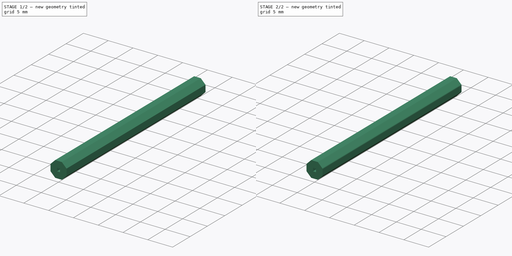
[diagram: build sequence overview — one tinted view per stage of 2, left to right]
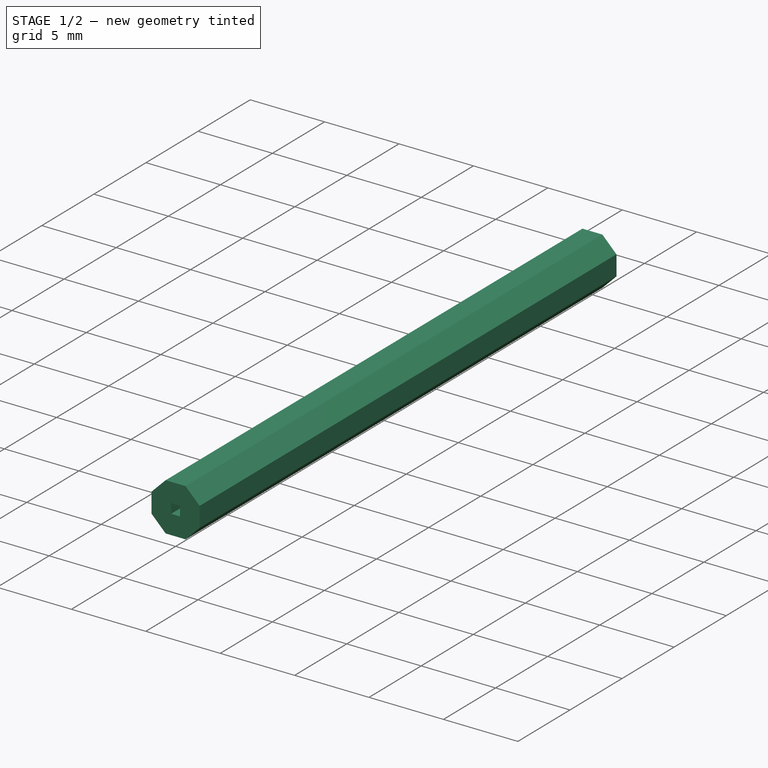
[diagram: stage 1 of 2 — iso view after this stage's code; geometry added in this stage tinted green]
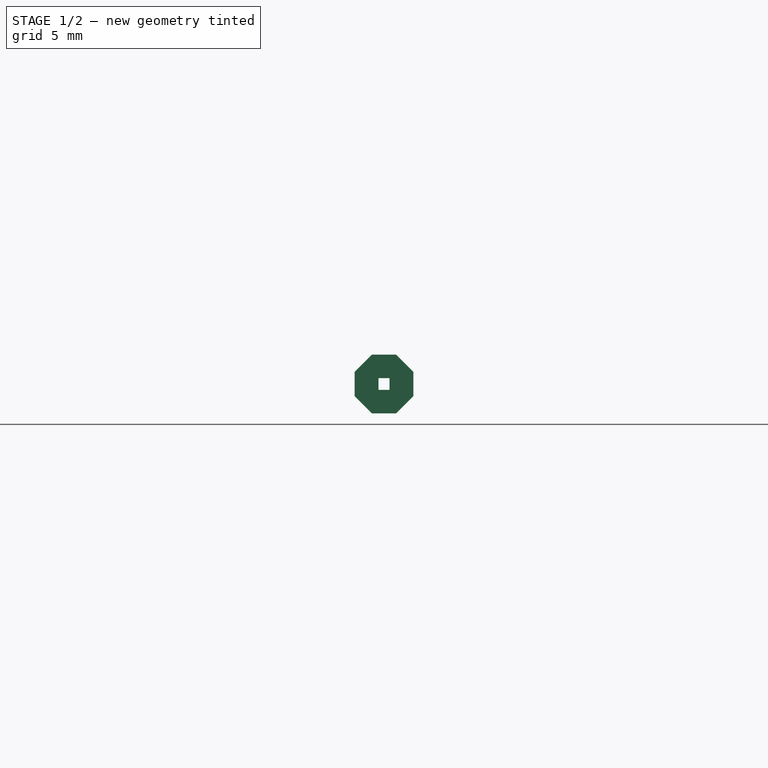
[diagram: stage 1 of 2 — front view after this stage's code; geometry added in this stage tinted green]
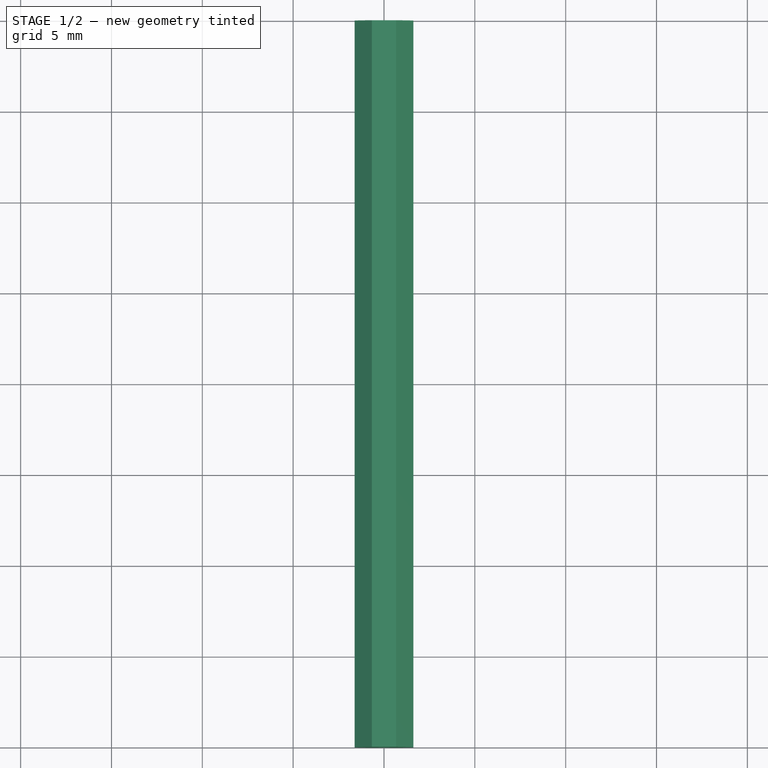
[diagram: stage 1 of 2 — top view after this stage's code; geometry added in this stage tinted green]
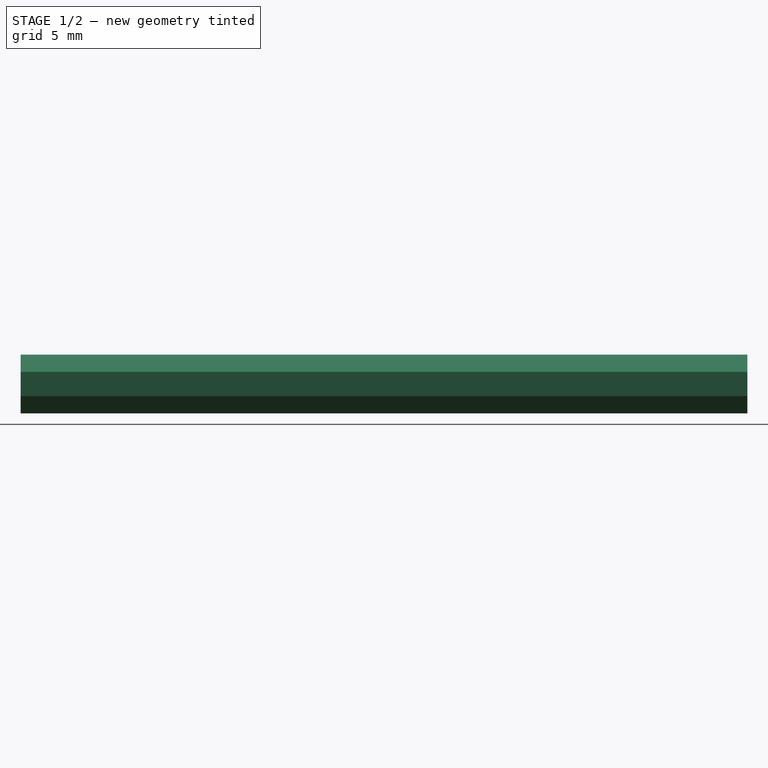
[diagram: stage 1 of 2 — right view after this stage's code; geometry added in this stage tinted green]
FCSTD DOCUMENT  (FreeCAD 1.1R41365 (Git))
Label: FlexureStiffener
License: All rights reserved
LicenseURL: https://en.wikipedia.org/wiki/All_rights_reserved
objects: App::Point×1, Sketcher::SketchObject×1, PartDesign::Pad×1, PartDesign::Fillet×1, PartDesign::Body×1
note: 9 computed .brp shape members not serialized (recipe doc carries the construction recipe); baked Part::Feature solids carry a one-line shape summary decoded from their .brp

FEATURE [App::Point] Origin001
  Role = Origin
FEATURE [Sketcher::SketchObject] Sketch
  ArcFitTolerance = 1e-06
  AttachmentSupport = -> [XZ_Plane]
  ExternalTypes = [0]
  FullyConstrained = true
  MakeInternals = false
  MapMode = 5
  Placement = pos=(0,0,0) rot=(1,0,0;1.5708rad)
  sketch-geometry (14):
    g0: LineSegment StartX=0.669696 StartY=1.61679 StartZ=0 EndX=-0.669696 EndY=1.61679 EndZ=0
    g1: LineSegment StartX=-0.669696 StartY=1.61679 StartZ=0 EndX=-1.61679 EndY=0.669696 EndZ=0
    g2: LineSegment StartX=-1.61679 StartY=0.669696 StartZ=0 EndX=-1.61679 EndY=-0.669696 EndZ=0
    g3: LineSegment StartX=-1.61679 StartY=-0.669696 StartZ=0 EndX=-0.669696 EndY=-1.61679 EndZ=0
    g4: LineSegment StartX=-0.669696 StartY=-1.61679 StartZ=0 EndX=0.669696 EndY=-1.61679 EndZ=0
    g5: LineSegment StartX=0.669696 StartY=-1.61679 StartZ=0 EndX=1.61679 EndY=-0.669696 EndZ=0
    g6: LineSegment StartX=1.61679 StartY=-0.669696 StartZ=0 EndX=1.61679 EndY=0.669696 EndZ=0
    g7: LineSegment StartX=1.61679 StartY=0.669696 StartZ=0 EndX=0.669696 EndY=1.61679 EndZ=0
    g8: Circle [constr] CenterX=0 CenterY=0 CenterZ=0 NormalX=0 NormalY=0 NormalZ=1 AngleXU=0 Radius=1.75
    g9: LineSegment StartX=-0.3 StartY=-0.325 StartZ=0 EndX=0.3 EndY=-0.325 EndZ=0
    g10: LineSegment StartX=0.3 StartY=-0.325 StartZ=0 EndX=0.3 EndY=0.325 EndZ=0
    g11: LineSegment StartX=0.3 StartY=0.325 StartZ=0 EndX=-0.3 EndY=0.325 EndZ=0
    g12: LineSegment StartX=-0.3 StartY=0.325 StartZ=0 EndX=-0.3 EndY=-0.325 EndZ=0
    g13: GeomPoint [constr] X=0 Y=0 Z=0
  constraints (32):
    c: Coincident(g0,g1)
    c: Coincident(g1,g2)
    c: Coincident(g2,g3)
    c: Coincident(g3,g4)
    c: Coincident(g4,g5)
    c: Coincident(g5,g6)
    c: Coincident(g6,g7)
    c: Coincident(g7,g0)
    c: Equal(g0, g1-g7) x7
    c: PointOnObject(g0,g8)
    c: PointOnObject(g1,g8)
    c: PointOnObject(g2,g8)
    c: PointOnObject(g3,g8)
    c: PointOnObject(g4,g8)
    c: PointOnObject(g5,g8)
    c: PointOnObject(g6,g8)
    c: PointOnObject(g7,g8)
    c: Coincident(g8,g-1)
    c: Vertical(g6)
    c: Diameter(g8) = 3.5
    c: Coincident(g9,g10)
    c: Coincident(g10,g11)
    c: Coincident(g11,g12)
    c: Coincident(g12,g9)
    c: Horizontal(g9)
    c: Horizontal(g11)
    c: Vertical(g10)
    c: Vertical(g12)
    c: Symmetric(g11,g9,g13)
    c: Coincident(g13,g8)
    c: DistanceY(g10,g10) = 0.65
    c: DistanceX(g11,g11) = 0.6
FEATURE [PartDesign::Pad] Pad
  Direction = (0,-1,2e-16)
  Length = 40
  Length2 = 10
  Midplane = true
  Placement = pos=(0,0,0) rot=(1,0,0;1.5708rad)
  Profile = -> Sketch
  ReferenceAxis = -> Sketch [N_Axis]
  Refine = true
  Suppressed = false
  Type = 0
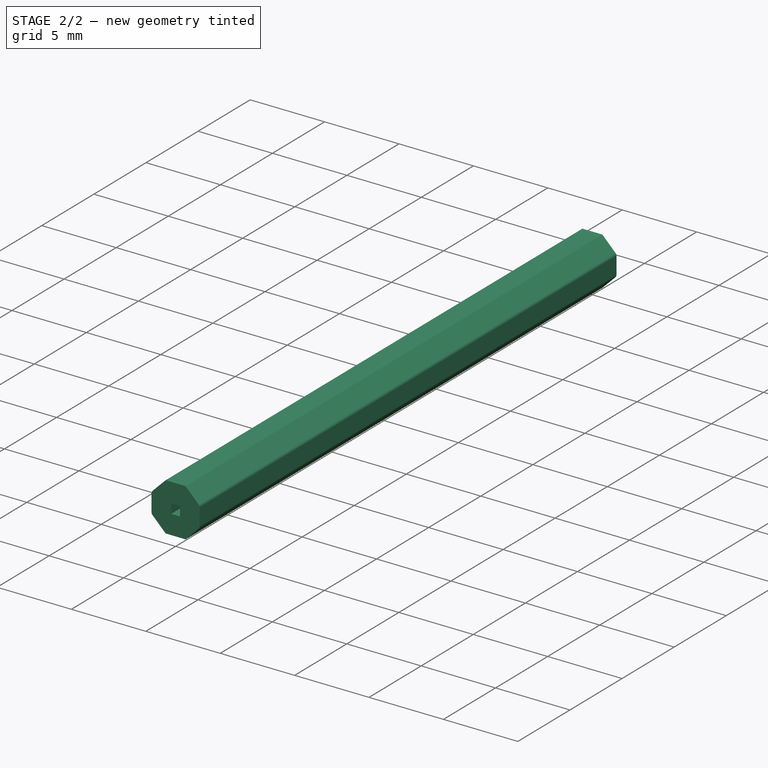
[diagram: stage 2 of 2 — iso view after this stage's code; geometry added in this stage tinted green]
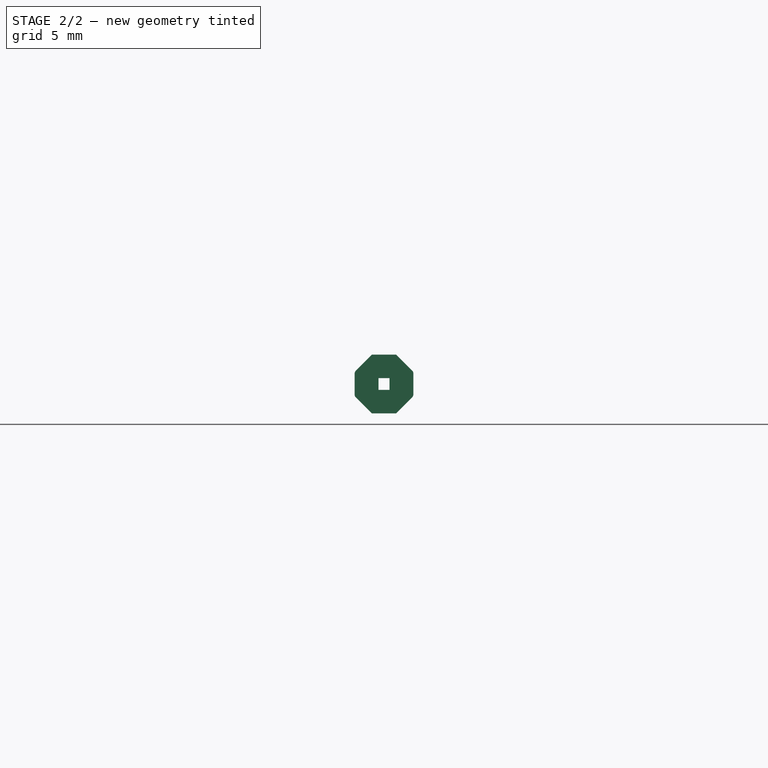
[diagram: stage 2 of 2 — front view after this stage's code; geometry added in this stage tinted green]
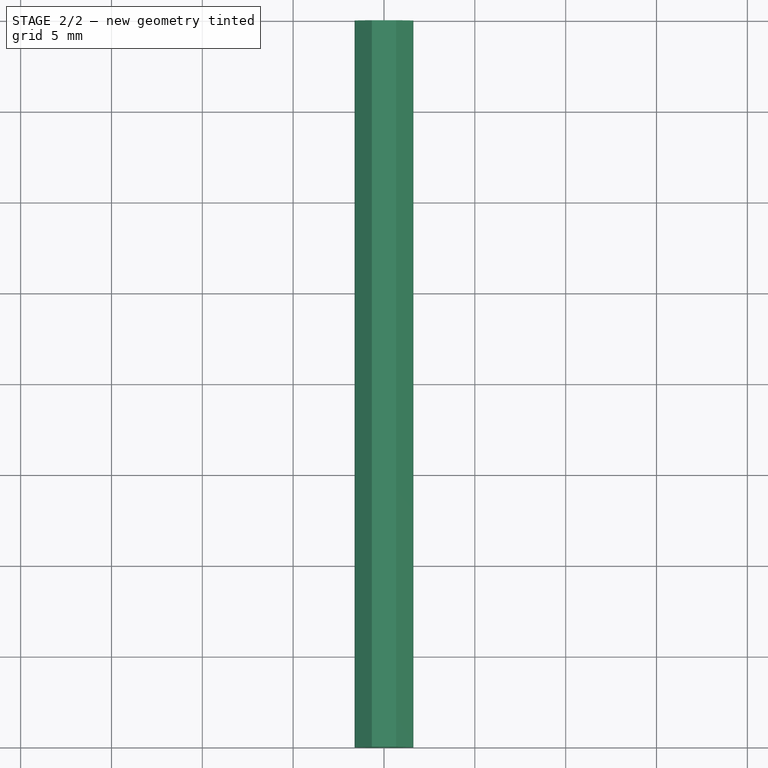
[diagram: stage 2 of 2 — top view after this stage's code; geometry added in this stage tinted green]
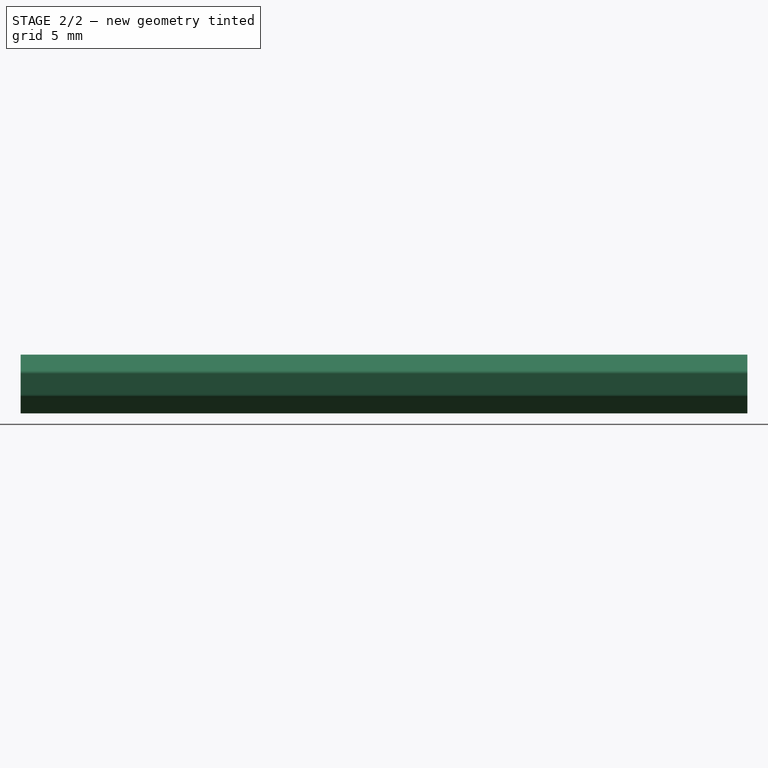
[diagram: stage 2 of 2 — right view after this stage's code; geometry added in this stage tinted green]
FEATURE [PartDesign::Fillet] Fillet
  Base = -> Pad [Edge5,Edge8,Edge20,Edge17]
  BaseFeature = -> Pad
  Placement = pos=(0,0,0) rot=(1,0,0;1.5708rad)
  Radius = 0.25
  Refine = true
  SupportTransform = false
  Suppressed = false
  UseAllEdges = false
FEATURE [PartDesign::Body] Body  label="FlexureStiffener"
  AllowCompound = false
  Group = -> [Sketch,Pad,Fillet]
  Origin = -> Origin
  Tip = -> Fillet
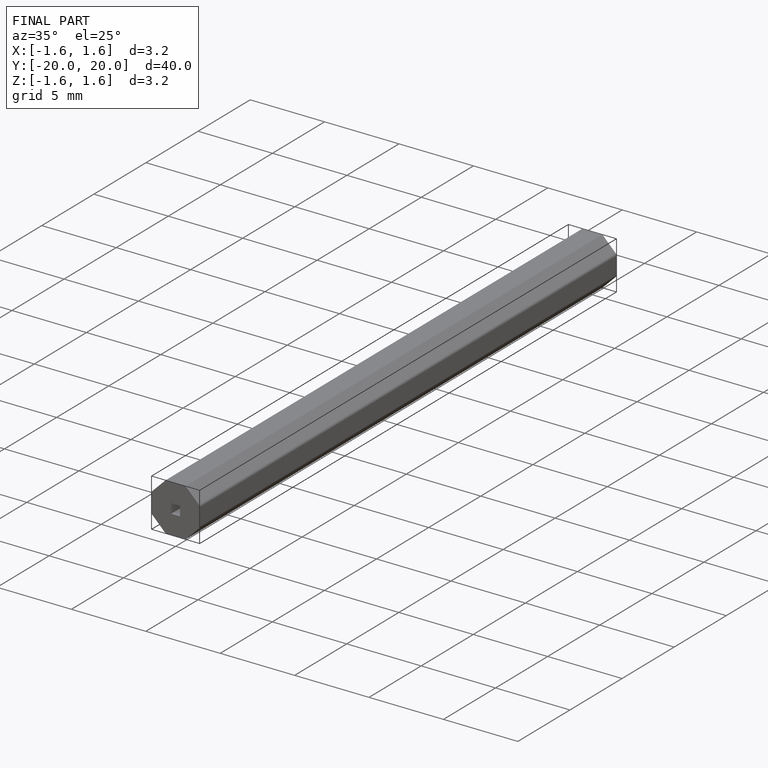
[diagram: finished part — iso view with bounding-box wireframe]
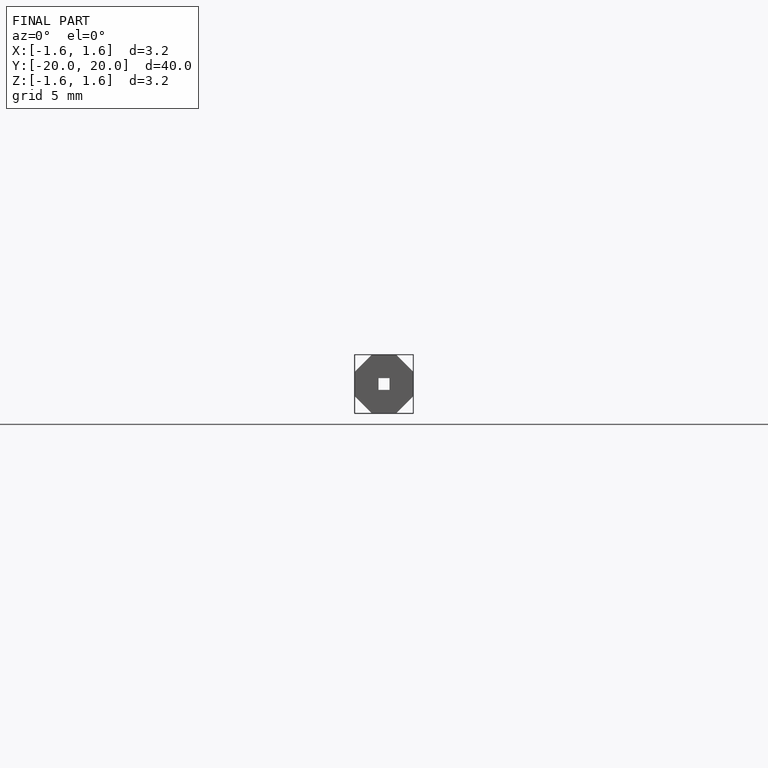
[diagram: finished part — front view with bounding-box wireframe]
